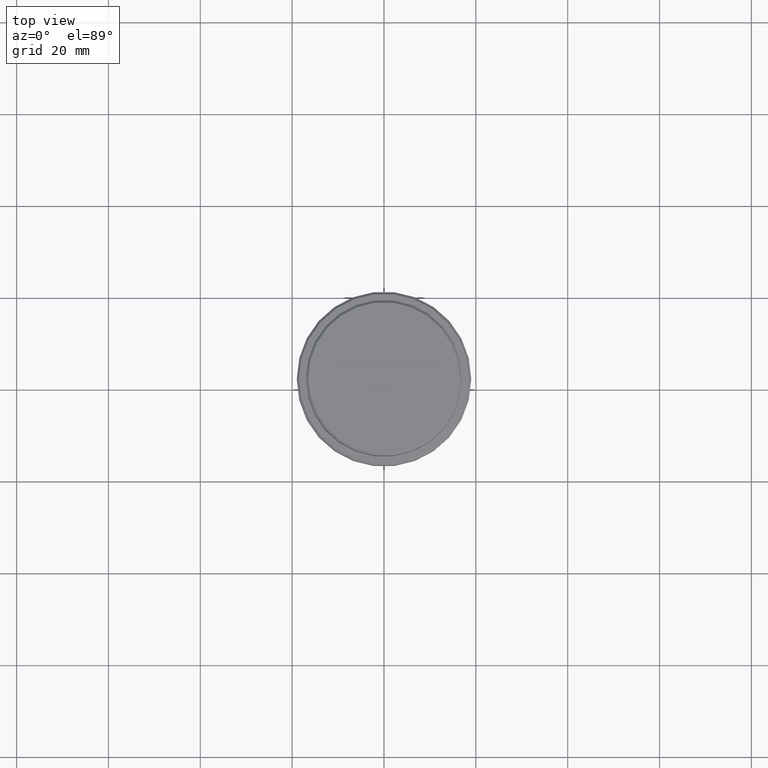
[diagram: clean part render]
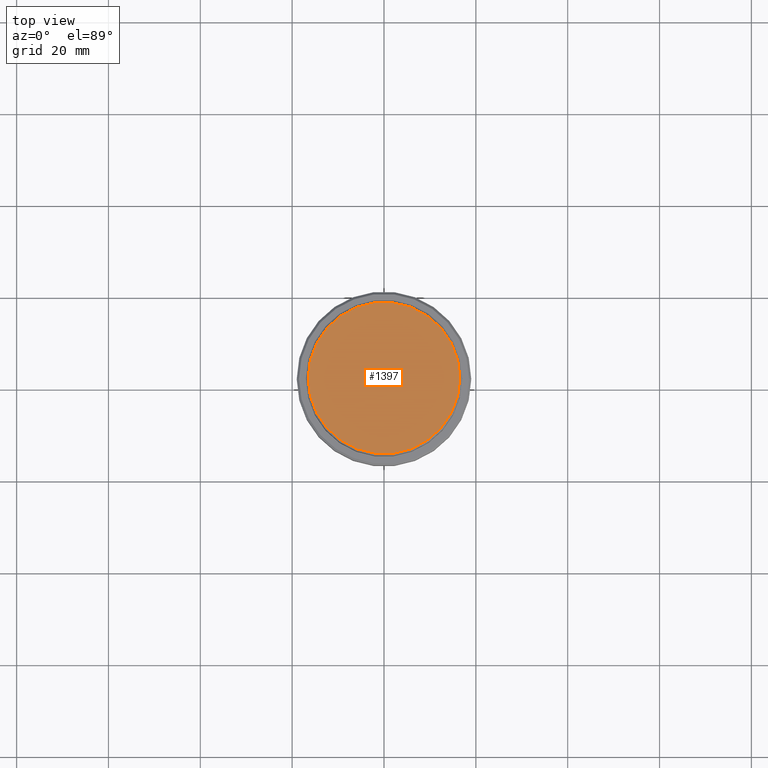
[diagram: same view with one face highlighted and labeled with its STEP entity id]
A machine part, top view. The second image highlights one B-rep face of the part: STEP entity #1397.
In plain terms, the highlighted planar face has unit normal (0, -0, 1).
Its self-contained STEP definition (entity closure, byte-faithful):
#2 = CARTESIAN_POINT ( 'NONE',  ( 0.000000000000000000, 0.000000000000000000, 0.000000000000000000 ) ) ;
#57 = EDGE_CURVE ( 'NONE', #914, #1097, #1145, .T. ) ;
#125 = AXIS2_PLACEMENT_3D ( 'NONE', #2, #1089, #1304 ) ;
#379 = AXIS2_PLACEMENT_3D ( 'NONE', #715, #609, #734 ) ;
#395 = EDGE_CURVE ( 'NONE', #1097, #914, #1339, .T. ) ;
#415 = AXIS2_PLACEMENT_3D ( 'NONE', #1043, #559, #1008 ) ;
#417 = ORIENTED_EDGE ( 'NONE', *, *, #395, .T. ) ;
#427 = FACE_OUTER_BOUND ( 'NONE', #430, .T. ) ;
#430 = EDGE_LOOP ( 'NONE', ( #417, #814 ) ) ;
#559 = DIRECTION ( 'NONE',  ( 0.000000000000000000, -0.000000000000000000, 1.000000000000000000 ) ) ;
#609 = DIRECTION ( 'NONE',  ( -0.000000000000000000, -0.000000000000000000, 1.000000000000000000 ) ) ;
#715 = CARTESIAN_POINT ( 'NONE',  ( 0.000000000000000000, 0.000000000000000000, 0.000000000000000000 ) ) ;
#734 = DIRECTION ( 'NONE',  ( 1.000000000000000000, 0.000000000000000000, 0.000000000000000000 ) ) ;
#814 = ORIENTED_EDGE ( 'NONE', *, *, #57, .T. ) ;
#907 = PLANE ( 'NONE',  #415 ) ;
#914 = VERTEX_POINT ( 'NONE', #1308 ) ;
#1008 = DIRECTION ( 'NONE',  ( 1.000000000000000000, 0.000000000000000000, 0.000000000000000000 ) ) ;
#1009 = CARTESIAN_POINT ( 'NONE',  ( -16.49999999999995737, 0.000000000000000000, 0.000000000000000000 ) ) ;
#1043 = CARTESIAN_POINT ( 'NONE',  ( 0.000000000000000000, 0.000000000000000000, 0.000000000000000000 ) ) ;
#1089 = DIRECTION ( 'NONE',  ( -0.000000000000000000, -0.000000000000000000, 1.000000000000000000 ) ) ;
#1097 = VERTEX_POINT ( 'NONE', #1009 ) ;
#1145 = CIRCLE ( 'NONE', #379, 16.49999999999995737 ) ;
#1304 = DIRECTION ( 'NONE',  ( 1.000000000000000000, 0.000000000000000000, 0.000000000000000000 ) ) ;
#1308 = CARTESIAN_POINT ( 'NONE',  ( 16.49999999999995737, 2.051283388571813732E-15, 0.000000000000000000 ) ) ;
#1339 = CIRCLE ( 'NONE', #125, 16.49999999999995737 ) ;
#1397 = ADVANCED_FACE ( 'NONE', ( #427 ), #907, .T. ) ;